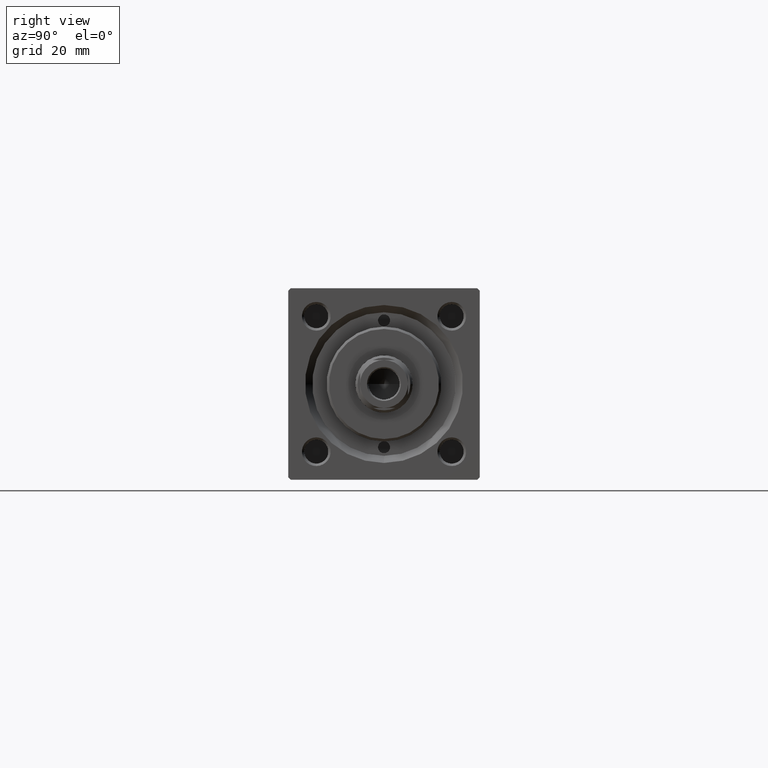
[diagram: clean part render]
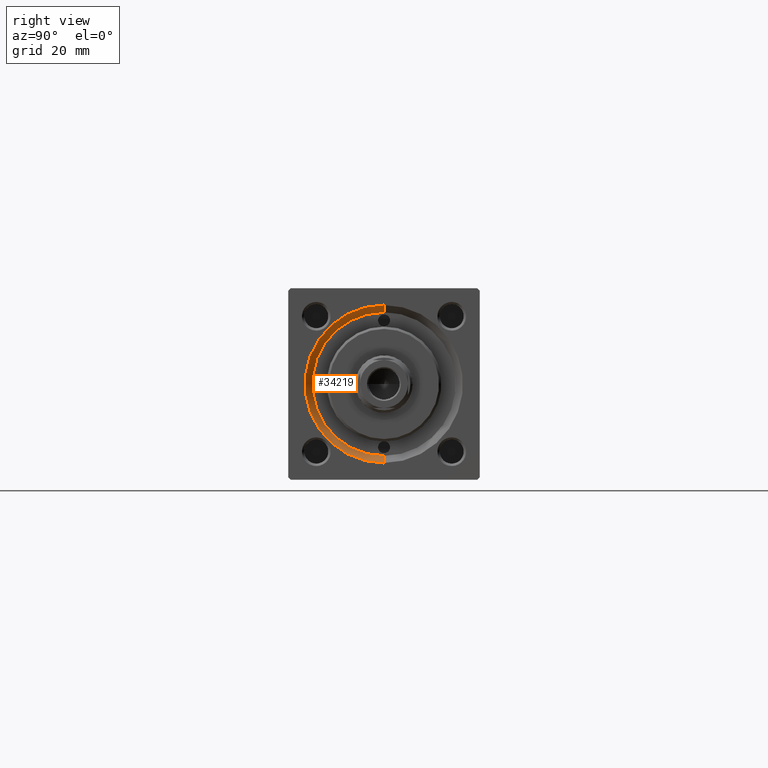
[diagram: same view with one face highlighted and labeled with its STEP entity id]
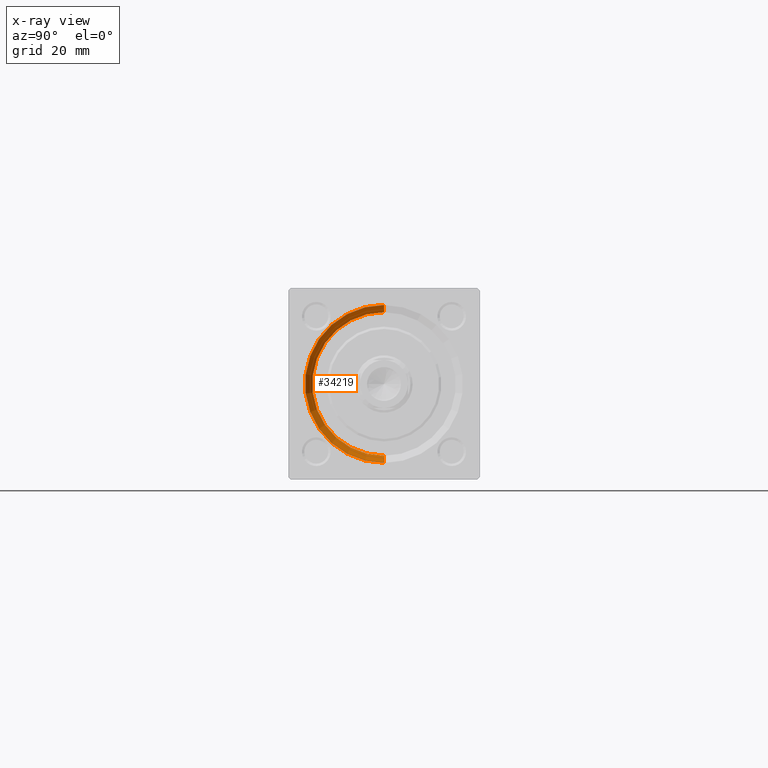
[diagram: x-ray of the same camera — body ghosted, the highlighted face saturated]
A machine part, right view. The second image highlights one B-rep face of the part: STEP entity #34219.
The next image is the same camera in x-ray: the body ghosted, the highlighted face saturated — about 0% of this face is hidden behind the body in this view.
In plain terms, the highlighted conical surface has half-angle 45 deg.
Its self-contained STEP definition (entity closure, byte-faithful):
#1634 = VERTEX_POINT ( 'NONE', #23427 ) ;
#3696 = VERTEX_POINT ( 'NONE', #6784 ) ;
#6784 = CARTESIAN_POINT ( 'NONE',  ( 117.5000000000000000, 0.000000000000000000, -15.00000000000000000 ) ) ;
#8300 = ORIENTED_EDGE ( 'NONE', *, *, #8800, .T. ) ;
#8800 = EDGE_CURVE ( 'NONE', #35137, #34956, #20184, .T. ) ;
#12218 = DIRECTION ( 'NONE',  ( 0.7071067811865474617, 0.000000000000000000, -0.7071067811865474617 ) ) ;
#12237 = DIRECTION ( 'NONE',  ( 0.000000000000000000, 0.000000000000000000, 1.000000000000000000 ) ) ;
#15579 = AXIS2_PLACEMENT_3D ( 'NONE', #47852, #15904, #39060 ) ;
#15904 = DIRECTION ( 'NONE',  ( 1.000000000000000000, 0.000000000000000000, 0.000000000000000000 ) ) ;
#16790 = DIRECTION ( 'NONE',  ( -1.000000000000000000, -0.000000000000000000, -0.000000000000000000 ) ) ;
#18906 = CIRCLE ( 'NONE', #49749, 16.50000000000001421 ) ;
#20065 = ORIENTED_EDGE ( 'NONE', *, *, #36569, .F. ) ;
#20184 = LINE ( 'NONE', #31380, #26649 ) ;
#20998 = EDGE_LOOP ( 'NONE', ( #49692, #8300, #24169, #20065 ) ) ;
#23427 = CARTESIAN_POINT ( 'NONE',  ( 119.0000000000000142, 0.000000000000000000, -16.50000000000001421 ) ) ;
#23933 = CARTESIAN_POINT ( 'NONE',  ( 117.5000000000000000, 0.000000000000000000, -15.00000000000000000 ) ) ;
#24169 = ORIENTED_EDGE ( 'NONE', *, *, #31094, .F. ) ;
#24649 = EDGE_CURVE ( 'NONE', #35137, #3696, #42351, .T. ) ;
#26649 = VECTOR ( 'NONE', #35692, 1000.000000000000114 ) ;
#27489 = LINE ( 'NONE', #23933, #43470 ) ;
#29425 = DIRECTION ( 'NONE',  ( 1.000000000000000000, 0.000000000000000000, 0.000000000000000000 ) ) ;
#31094 = EDGE_CURVE ( 'NONE', #1634, #34956, #18906, .T. ) ;
#31380 = CARTESIAN_POINT ( 'NONE',  ( 117.5000000000000000, 1.836970198721029589E-15, 15.00000000000000000 ) ) ;
#32306 = CARTESIAN_POINT ( 'NONE',  ( 119.0000000000000142, 0.000000000000000000, 0.000000000000000000 ) ) ;
#32979 = CARTESIAN_POINT ( 'NONE',  ( 117.5000000000000000, 0.000000000000000000, 0.000000000000000000 ) ) ;
#34219 = ADVANCED_FACE ( 'NONE', ( #48995 ), #37718, .F. ) ;
#34956 = VERTEX_POINT ( 'NONE', #38354 ) ;
#35137 = VERTEX_POINT ( 'NONE', #49214 ) ;
#35692 = DIRECTION ( 'NONE',  ( 0.7071067811865474617, 8.659560562354932858E-17, 0.7071067811865474617 ) ) ;
#36569 = EDGE_CURVE ( 'NONE', #3696, #1634, #27489, .T. ) ;
#37718 = CONICAL_SURFACE ( 'NONE', #47420, 15.00000000000000000, 0.7853981633974482790 ) ;
#38354 = CARTESIAN_POINT ( 'NONE',  ( 119.0000000000000142, 2.020667218593134678E-15, 16.50000000000001421 ) ) ;
#39060 = DIRECTION ( 'NONE',  ( 0.000000000000000000, 0.000000000000000000, 1.000000000000000000 ) ) ;
#41117 = DIRECTION ( 'NONE',  ( 0.000000000000000000, 0.000000000000000000, -1.000000000000000000 ) ) ;
#42351 = CIRCLE ( 'NONE', #15579, 15.00000000000000000 ) ;
#43470 = VECTOR ( 'NONE', #12218, 1000.000000000000114 ) ;
#47420 = AXIS2_PLACEMENT_3D ( 'NONE', #32979, #29425, #41117 ) ;
#47852 = CARTESIAN_POINT ( 'NONE',  ( 117.5000000000000000, 0.000000000000000000, 0.000000000000000000 ) ) ;
#48995 = FACE_OUTER_BOUND ( 'NONE', #20998, .T. ) ;
#49214 = CARTESIAN_POINT ( 'NONE',  ( 117.5000000000000000, 1.836970198721029589E-15, 15.00000000000000000 ) ) ;
#49692 = ORIENTED_EDGE ( 'NONE', *, *, #24649, .F. ) ;
#49749 = AXIS2_PLACEMENT_3D ( 'NONE', #32306, #16790, #12237 ) ;